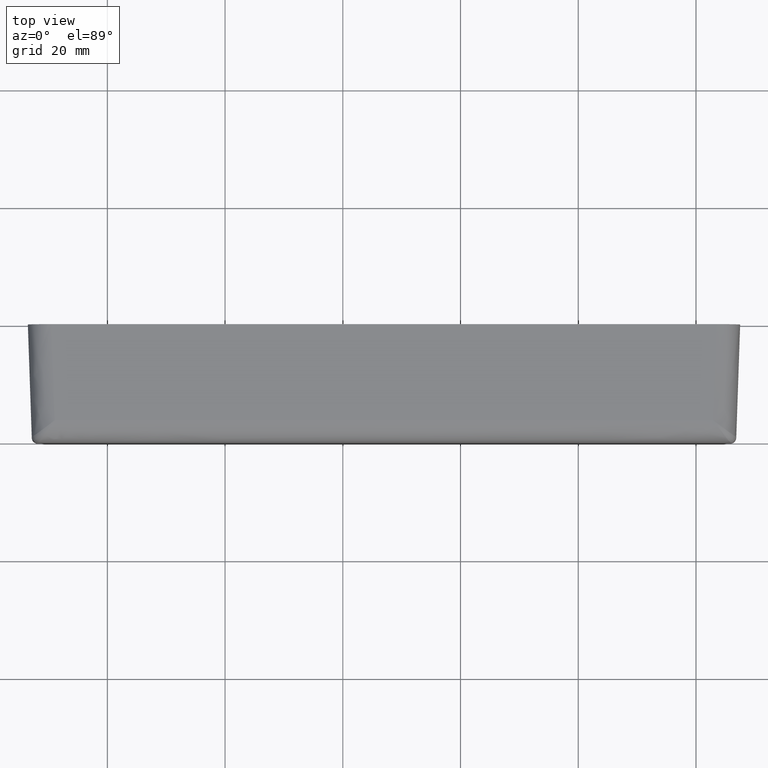
[diagram: clean part render]
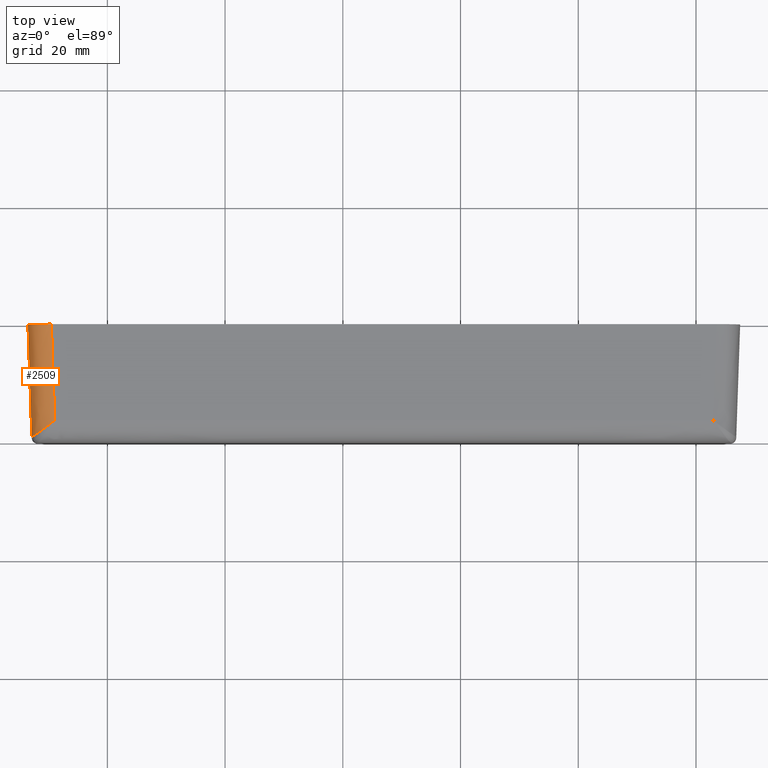
[diagram: same view with one face highlighted and labeled with its STEP entity id]
A machine part, top view. The second image highlights one B-rep face of the part: STEP entity #2509.
In plain terms, the highlighted face is a freeform B-spline surface patch.
Its self-contained STEP definition (entity closure, byte-faithful):
#1540=CARTESIAN_POINT('',(-108.938829812107800,-16.299159799049850,6.277562990073291));
#1541=VERTEX_POINT('',#1540);
#1557=CARTESIAN_POINT('',(-112.824660031509590,-19.040200725139801,2.360750698062270));
#1558=VERTEX_POINT('',#1557);
#1559=CARTESIAN_POINT('',(-112.824660031509590,-19.040200725139801,2.360750698062270));
#1560=CARTESIAN_POINT('',(-112.554262020874060,-19.106988978839400,6.066976019110799));
#1561=CARTESIAN_POINT('',(-108.938829812107800,-16.299159799049850,6.277562990073291));
#1569=(BOUNDED_CURVE()B_SPLINE_CURVE(2,(#1559,#1560,#1561),.UNSPECIFIED.,.F.,.U.)CURVE()GEOMETRIC_REPRESENTATION_ITEM()QUASI_UNIFORM_CURVE()RATIONAL_B_SPLINE_CURVE((1.0,0.733072264625089,1.0))REPRESENTATION_ITEM(''));
#1570=EDGE_CURVE('',#1558,#1541,#1569,.T.);
#1608=CARTESIAN_POINT('',(-112.835287018226000,-19.034899478076149,2.071618129102350));
#1609=VERTEX_POINT('',#1608);
#1639=CARTESIAN_POINT('',(-112.835287018225900,-19.034899478076209,2.071618129102124));
#1640=CARTESIAN_POINT('',(-112.835192743747680,-19.037599147356595,2.216383493939045));
#1641=CARTESIAN_POINT('',(-112.824660031509690,-19.040200725139862,2.360750698062240));
#1649=(BOUNDED_CURVE()B_SPLINE_CURVE(2,(#1639,#1640,#1641),.UNSPECIFIED.,.F.,.U.)CURVE()GEOMETRIC_REPRESENTATION_ITEM()QUASI_UNIFORM_CURVE()RATIONAL_B_SPLINE_CURVE((1.0,0.999347568272995,1.0))REPRESENTATION_ITEM(''));
#1650=EDGE_CURVE('',#1609,#1558,#1649,.T.);
#2464=CARTESIAN_POINT('',(-108.705865395472300,-19.670963435261100,6.023015434675918));
#2465=CARTESIAN_POINT('',(-109.411199680193700,0.527178584289447,7.537876117120037));
#2466=CARTESIAN_POINT('',(-113.106957159218340,-19.833278027557828,6.138017611376729));
#2467=CARTESIAN_POINT('',(-113.812291443939800,0.364863991992719,7.652878293820855));
#2468=CARTESIAN_POINT('',(-112.809375950666620,-19.494204336830364,1.755591947773846));
#2469=CARTESIAN_POINT('',(-113.514710235388120,0.703937682720183,3.270452630217969));
#2477=(BOUNDED_SURFACE()B_SPLINE_SURFACE(1,2,((#2464,#2466,#2468),(#2465,#2467,#2469)),.UNSPECIFIED.,.F.,.F.,.U.)B_SPLINE_SURFACE_WITH_KNOTS((2,2),(3,3),(0.0,20.267146823920530),(0.0,7.083951197134729),.UNSPECIFIED.)GEOMETRIC_REPRESENTATION_ITEM()RATIONAL_B_SPLINE_SURFACE(((1.0,0.670972873216532,0.996335981613299),(1.0,0.670972873216532,0.996335981613299)))REPRESENTATION_ITEM('')SURFACE());
#2478=ORIENTED_EDGE('',*,*,#1650,.T.);
#2479=ORIENTED_EDGE('',*,*,#1570,.T.);
#2480=CARTESIAN_POINT('',(-109.508008710211200,0.0,7.500000000000000));
#2481=VERTEX_POINT('',#2480);
#2482=CARTESIAN_POINT('',(-109.508008710211200,0.0,7.500000000000000));
#2483=CARTESIAN_POINT('',(-108.938829812107800,-16.299159799049850,6.277562990073291));
#2484=QUASI_UNIFORM_CURVE('',1,(#2482,#2483),.UNSPECIFIED.,.F.,.U.);
#2485=EDGE_CURVE('',#2481,#1541,#2484,.T.);
#2486=ORIENTED_EDGE('',*,*,#2485,.F.);
#2487=CARTESIAN_POINT('',(-113.500000000000000,-1.421085E-014,3.499235619151775));
#2488=VERTEX_POINT('',#2487);
#2489=CARTESIAN_POINT('',(-113.500000000000100,-1.348049E-014,3.499235619151709));
#2490=CARTESIAN_POINT('',(-113.500000000000260,-1.348049E-014,7.499999999999973));
#2491=CARTESIAN_POINT('',(-109.508008710211200,-1.301165E-014,7.500000000000000));
#2499=(BOUNDED_CURVE()B_SPLINE_CURVE(2,(#2489,#2490,#2491),.UNSPECIFIED.,.F.,.U.)CURVE()GEOMETRIC_REPRESENTATION_ITEM()QUASI_UNIFORM_CURVE()RATIONAL_B_SPLINE_CURVE((1.0,0.708029000187151,1.0))REPRESENTATION_ITEM(''));
#2500=EDGE_CURVE('',#2488,#2481,#2499,.T.);
#2501=ORIENTED_EDGE('',*,*,#2500,.F.);
#2502=CARTESIAN_POINT('',(-112.835287018226000,-19.034899478076149,2.071618129102350));
#2503=CARTESIAN_POINT('',(-113.500000000000000,-1.421085E-014,3.499235619151775));
#2504=QUASI_UNIFORM_CURVE('',1,(#2502,#2503),.UNSPECIFIED.,.F.,.U.);
#2505=EDGE_CURVE('',#1609,#2488,#2504,.T.);
#2506=ORIENTED_EDGE('',*,*,#2505,.F.);
#2507=EDGE_LOOP('',(#2478,#2479,#2486,#2501,#2506));
#2508=FACE_OUTER_BOUND('',#2507,.T.);
#2509=ADVANCED_FACE('',(#2508),#2477,.T.);